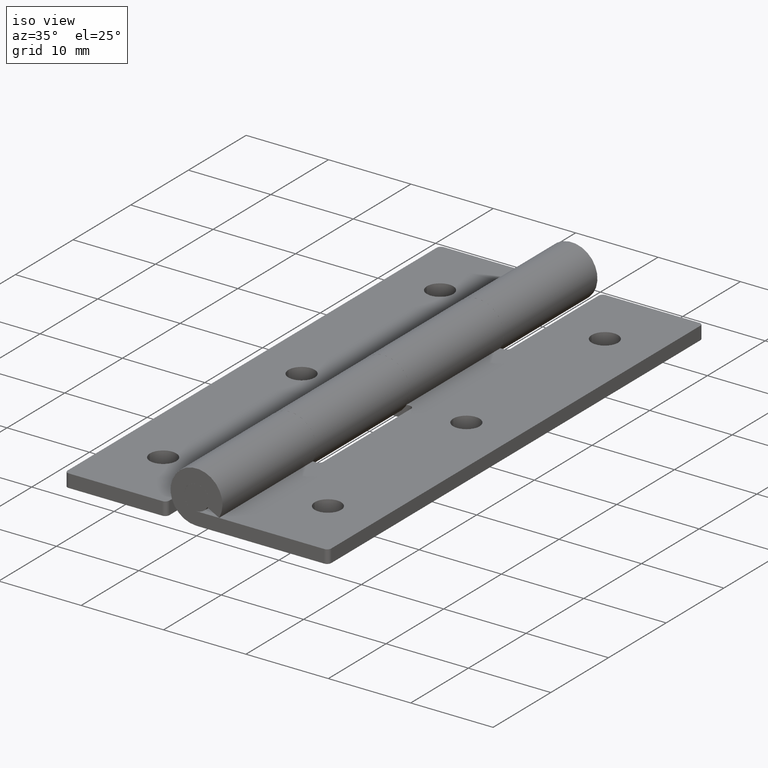
[diagram: clean part render]
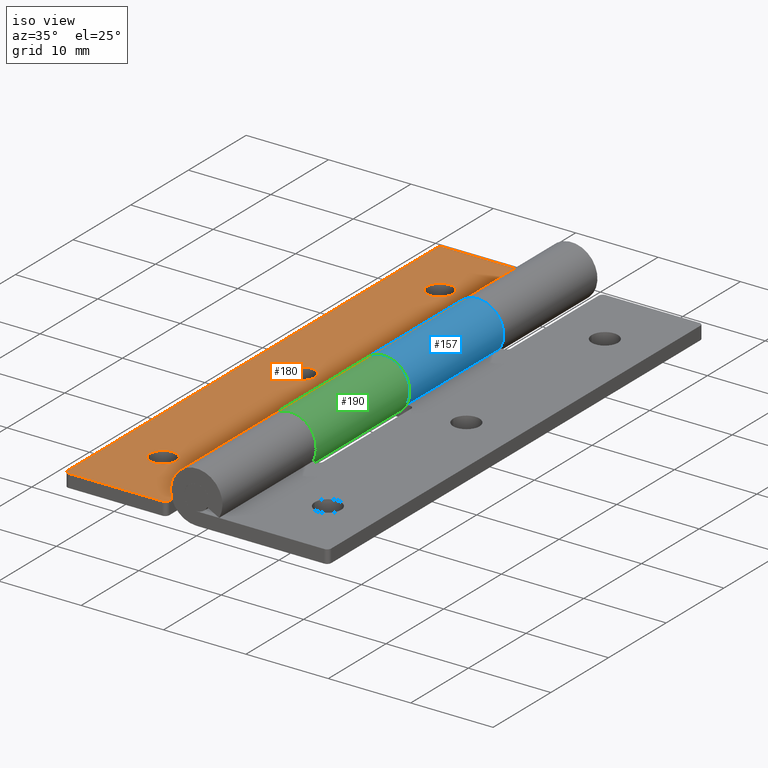
[diagram: same view with three faces highlighted in distinct colors, each labeled with its STEP entity id]
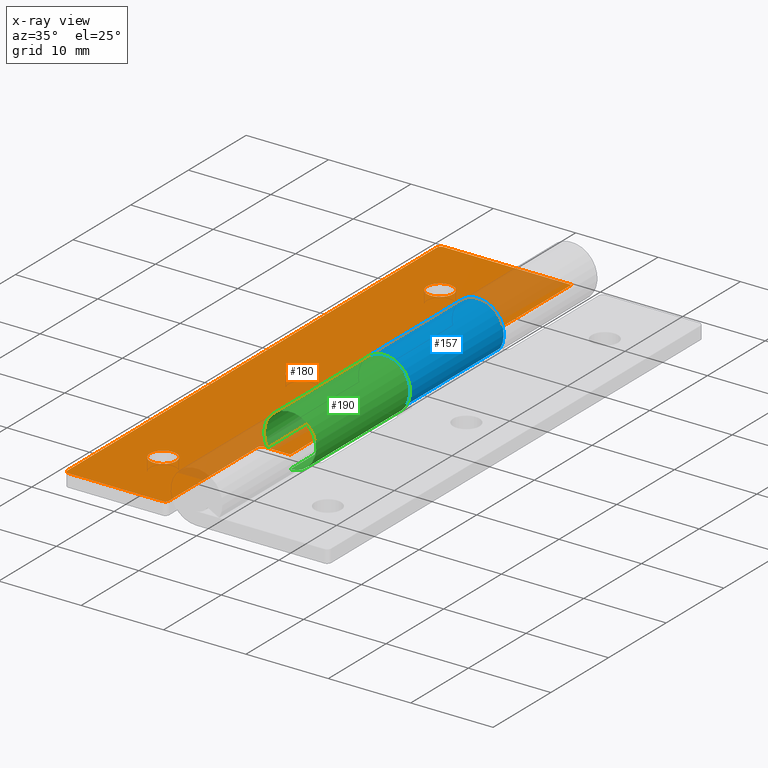
[diagram: x-ray of the same camera — body ghosted, the three highlighted faces saturated]
A machine part, iso view with three faces highlighted in distinct colors.
The next image is the same camera in x-ray (body ghosted, the three faces saturated) — at least one of them is partly hidden behind the body in this view.
Their STEP definitions:

[orange] entity #180 — the highlighted planar face has unit normal (0, 0, -1).
#180=ADVANCED_FACE('',(#526,#527,#528,#529),#525,.F.);
#525=PLANE('',#985);
#526=FACE_OUTER_BOUND('',#986,.T.);
#527=FACE_BOUND('',#987,.T.);
#528=FACE_BOUND('',#988,.T.);
#529=FACE_BOUND('',#989,.T.);
#982=CARTESIAN_POINT('',(1.59999999999E+00,-6.50000000000E+00,-1.50000000000E+00));
#983=DIRECTION('',(1.56175257191E-12,0.00000000000E+00,-1.00000000000E+00));
#984=DIRECTION('',(-1.00000000000E+00,0.00000000000E+00,-1.56175257191E-12));
#985=AXIS2_PLACEMENT_3D('',#982,#983,#984);
#986=EDGE_LOOP('',(#1303,#1304,#1305,#1306,#1307,#1308,#1309,#1310,#1311,#1312,#1313,#1314,#1315,#1316,#1317,#1318));
#987=EDGE_LOOP('',(#1319,#1320));
#988=EDGE_LOOP('',(#1321,#1322));
#989=EDGE_LOOP('',(#1323,#1324));
#1303=ORIENTED_EDGE('',*,*,#1548,.F.);
#1304=ORIENTED_EDGE('',*,*,#1549,.T.);
#1305=ORIENTED_EDGE('',*,*,#1550,.F.);
#1306=ORIENTED_EDGE('',*,*,#1551,.T.);
#1307=ORIENTED_EDGE('',*,*,#1544,.F.);
#1308=ORIENTED_EDGE('',*,*,#1552,.F.);
#1309=ORIENTED_EDGE('',*,*,#1543,.T.);
#1310=ORIENTED_EDGE('',*,*,#1535,.F.);
#1311=ORIENTED_EDGE('',*,*,#1553,.F.);
#1312=ORIENTED_EDGE('',*,*,#1554,.F.);
#1313=ORIENTED_EDGE('',*,*,#1555,.T.);
#1314=ORIENTED_EDGE('',*,*,#1556,.F.);
#1315=ORIENTED_EDGE('',*,*,#1557,.T.);
#1316=ORIENTED_EDGE('',*,*,#1558,.F.);
#1317=ORIENTED_EDGE('',*,*,#1559,.F.);
#1318=ORIENTED_EDGE('',*,*,#1560,.F.);
#1319=ORIENTED_EDGE('',*,*,#1561,.T.);
#1320=ORIENTED_EDGE('',*,*,#1562,.T.);
#1321=ORIENTED_EDGE('',*,*,#1563,.T.);
#1322=ORIENTED_EDGE('',*,*,#1564,.T.);
#1323=ORIENTED_EDGE('',*,*,#1565,.T.);
#1324=ORIENTED_EDGE('',*,*,#1566,.T.);
#1535=EDGE_CURVE('',#2139,#2140,#2141,.T.);
#1543=EDGE_CURVE('',#2182,#2140,#2195,.T.);
#1544=EDGE_CURVE('',#2201,#2202,#2203,.T.);
#1548=EDGE_CURVE('',#2229,#2230,#2231,.T.);
#1549=EDGE_CURVE('',#2229,#2237,#2238,.T.);
#1550=EDGE_CURVE('',#2244,#2237,#2245,.T.);
#1551=EDGE_CURVE('',#2244,#2202,#2251,.T.);
#1552=EDGE_CURVE('',#2182,#2201,#2257,.T.);
#1553=EDGE_CURVE('',#2263,#2139,#2264,.T.);
#1554=EDGE_CURVE('',#2270,#2263,#2271,.T.);
#1555=EDGE_CURVE('',#2270,#2277,#2278,.T.);
#1556=EDGE_CURVE('',#2284,#2277,#2285,.T.);
#1557=EDGE_CURVE('',#2284,#2291,#2292,.T.);
#1558=EDGE_CURVE('',#2298,#2291,#2299,.T.);
#1559=EDGE_CURVE('',#2305,#2298,#2306,.T.);
#1560=EDGE_CURVE('',#2230,#2305,#2312,.T.);
#1561=EDGE_CURVE('',#2318,#2319,#2320,.T.);
#1562=EDGE_CURVE('',#2319,#2318,#2326,.T.);
#1563=EDGE_CURVE('',#2332,#2333,#2334,.T.);
#1564=EDGE_CURVE('',#2333,#2332,#2340,.T.);
#1565=EDGE_CURVE('',#2346,#2347,#2348,.T.);
#1566=EDGE_CURVE('',#2347,#2346,#2354,.T.);
#2139=VERTEX_POINT('',#3011);
#2140=VERTEX_POINT('',#3012);
#2141=LINE('',#3013,#3014);
#2182=VERTEX_POINT('',#3038);
#2195=CIRCLE('',#3049,5.00000000000E-01);
#2201=VERTEX_POINT('',#3050);
#2202=VERTEX_POINT('',#3051);
#2203=CIRCLE('',#3055,4.99999999999E-01);
#2229=VERTEX_POINT('',#3068);
#2230=VERTEX_POINT('',#3069);
#2231=CIRCLE('',#3073,5.00000000000E-01);
#2237=VERTEX_POINT('',#3074);
#2238=LINE('',#3075,#3076);
#2244=VERTEX_POINT('',#3078);
#2245=CIRCLE('',#3082,5.00000000000E-01);
#2251=LINE('',#3083,#3084);
#2257=LINE('',#3086,#3087);
#2263=VERTEX_POINT('',#3089);
#2264=LINE('',#3090,#3091);
#2270=VERTEX_POINT('',#3093);
#2271=LINE('',#3094,#3095);
#2277=VERTEX_POINT('',#3097);
#2278=CIRCLE('',#3101,5.00000000000E-01);
#2284=VERTEX_POINT('',#3102);
#2285=LINE('',#3103,#3104);
#2291=VERTEX_POINT('',#3106);
#2292=CIRCLE('',#3110,5.00000000000E-01);
#2298=VERTEX_POINT('',#3111);
#2299=LINE('',#3112,#3113);
#2305=VERTEX_POINT('',#3115);
#2306=LINE('',#3116,#3117);
#2312=LINE('',#3119,#3120);
#2318=VERTEX_POINT('',#3122);
#2319=VERTEX_POINT('',#3123);
#2320=CIRCLE('',#3127,1.60000000000E+00);
#2326=CIRCLE('',#3131,1.60000000000E+00);
#2332=VERTEX_POINT('',#3132);
#2333=VERTEX_POINT('',#3133);
#2334=CIRCLE('',#3137,1.60000000000E+00);
#2340=CIRCLE('',#3141,1.60000000000E+00);
#2346=VERTEX_POINT('',#3142);
#2347=VERTEX_POINT('',#3143);
#2348=CIRCLE('',#3147,1.60000000000E+00);
#2354=CIRCLE('',#3151,1.60000000000E+00);
#3011=CARTESIAN_POINT('',(2.34451548248E-12,1.62500000000E+01,-1.50000000000E+00));
#3012=CARTESIAN_POINT('',(-3.14999999988E+00,1.62500000000E+01,-1.50000000000E+00));
#3013=CARTESIAN_POINT('',(2.34479102801E-12,1.62500000000E+01,-1.50000000000E+00));
#3014=VECTOR('',#3015,3.14999999988E+00);
#3015=DIRECTION('',(-1.00000000000E+00,-7.75957781304E-13,-1.56171372137E-12));
#3038=CARTESIAN_POINT('',(-3.64999999988E+00,1.57500000000E+01,-1.50000000001E+00));
#3046=CARTESIAN_POINT('',(-3.14999999988E+00,1.57500000000E+01,-1.50000000001E+00));
#3047=DIRECTION('',(1.56175257191E-12,0.00000000000E+00,-1.00000000000E+00));
#3048=DIRECTION('',(1.00000000000E+00,-0.00000000000E+00,1.56175257191E-12));
#3049=AXIS2_PLACEMENT_3D('',#3046,#3047,#3048);
#3050=CARTESIAN_POINT('',(-3.64999999990E+00,5.00000000007E-01,-1.50000000001E+00));
#3051=CARTESIAN_POINT('',(-4.14999999990E+00,6.70752342558E-12,-1.50000000001E+00));
#3052=CARTESIAN_POINT('',(-4.14999999990E+00,5.00000000007E-01,-1.50000000001E+00));
#3053=DIRECTION('',(1.56175257191E-12,0.00000000000E+00,-1.00000000000E+00));
#3054=DIRECTION('',(1.00000000000E+00,-0.00000000000E+00,1.56175257191E-12));
#3055=AXIS2_PLACEMENT_3D('',#3052,#3053,#3054);
#3068=CARTESIAN_POINT('',(-1.59999999998E+01,6.45000000000E+01,-1.50000000003E+00));
#3069=CARTESIAN_POINT('',(-1.54999999998E+01,6.50000000000E+01,-1.50000000002E+00));
#3070=CARTESIAN_POINT('',(-1.54999999998E+01,6.45000000000E+01,-1.50000000002E+00));
#3071=DIRECTION('',(1.56175257191E-12,0.00000000000E+00,-1.00000000000E+00));
#3072=DIRECTION('',(1.00000000000E+00,-0.00000000000E+00,1.56175257191E-12));
#3073=AXIS2_PLACEMENT_3D('',#3070,#3071,#3072);
#3074=CARTESIAN_POINT('',(-1.59999999999E+01,5.00000000025E-01,-1.50000000003E+00));
#3075=CARTESIAN_POINT('',(-1.59999999998E+01,6.45000000000E+01,-1.50000000003E+00));
#3076=VECTOR('',#3077,6.40000000000E+01);
#3077=DIRECTION('',(0.00000000000E+00,-1.00000000000E+00,0.00000000000E+00));
#3078=CARTESIAN_POINT('',(-1.54999999999E+01,2.44995135290E-11,-1.50000000001E+00));
#3079=CARTESIAN_POINT('',(-1.54999999999E+01,5.00000000024E-01,-1.50000000002E+00));
#3080=DIRECTION('',(1.56175257191E-12,0.00000000000E+00,-1.00000000000E+00));
#3081=DIRECTION('',(1.00000000000E+00,-0.00000000000E+00,1.56175257191E-12));
#3082=AXIS2_PLACEMENT_3D('',#3079,#3080,#3081);
#3083=CARTESIAN_POINT('',(-1.54999999999E+01,6.70752342558E-12,-1.50000000002E+00));
#3084=VECTOR('',#3085,1.13500000000E+01);
#3085=DIRECTION('',(1.00000000000E+00,0.00000000000E+00,1.56174632697E-12));
#3086=CARTESIAN_POINT('',(-3.64999999988E+00,1.57500000000E+01,-1.50000000001E+00));
#3087=VECTOR('',#3088,1.52500000000E+01);
#3088=DIRECTION('',(-1.56738738564E-12,-1.00000000000E+00,0.00000000000E+00));
#3089=CARTESIAN_POINT('',(2.34451548248E-12,3.25000000000E+01,-1.50000000000E+00));
#3090=CARTESIAN_POINT('',(2.34451548248E-12,3.25000000000E+01,-1.50000000000E+00));
#3091=VECTOR('',#3092,1.62500000000E+01);
#3092=DIRECTION('',(0.00000000000E+00,-1.00000000000E+00,0.00000000000E+00));
#3093=CARTESIAN_POINT('',(-3.14999999984E+00,3.25000000000E+01,-1.50000000000E+00));
#3094=CARTESIAN_POINT('',(-3.14999999984E+00,3.25000000000E+01,-1.50000000001E+00));
#3095=VECTOR('',#3096,3.14999999984E+00);
#3096=DIRECTION('',(1.00000000000E+00,-1.30153383668E-12,1.56171372139E-12));
#3097=CARTESIAN_POINT('',(-3.64999999984E+00,3.30000000000E+01,-1.50000000001E+00));
#3098=CARTESIAN_POINT('',(-3.14999999984E+00,3.30000000000E+01,-1.50000000001E+00));
#3099=DIRECTION('',(1.56175257191E-12,0.00000000000E+00,-1.00000000000E+00));
#3100=DIRECTION('',(1.00000000000E+00,-0.00000000000E+00,1.56175257191E-12));
#3101=AXIS2_PLACEMENT_3D('',#3098,#3099,#3100);
#3102=CARTESIAN_POINT('',(-3.64999999981E+00,4.82500000000E+01,-1.50000000001E+00));
#3103=CARTESIAN_POINT('',(-3.64999999981E+00,4.82500000000E+01,-1.50000000001E+00));
#3104=VECTOR('',#3105,1.52500000000E+01);
#3105=DIRECTION('',(-1.56738738564E-12,-1.00000000000E+00,0.00000000000E+00));
#3106=CARTESIAN_POINT('',(-3.14999999981E+00,4.87500000000E+01,-1.50000000000E+00));
#3107=CARTESIAN_POINT('',(-3.14999999981E+00,4.82500000000E+01,-1.50000000001E+00));
#3108=DIRECTION('',(1.56175257191E-12,0.00000000000E+00,-1.00000000000E+00));
#3109=DIRECTION('',(1.00000000000E+00,-0.00000000000E+00,1.56175257191E-12));
#3110=AXIS2_PLACEMENT_3D('',#3107,#3108,#3109);
#3111=CARTESIAN_POINT('',(2.34451548249E-12,4.87500000000E+01,-1.50000000000E+00));
#3112=CARTESIAN_POINT('',(2.34656738485E-12,4.87500000000E+01,-1.50000000000E+00));
#3113=VECTOR('',#3114,3.14999999981E+00);
#3114=DIRECTION('',(-1.00000000000E+00,-2.86021647301E-12,-1.56171372140E-12));
#3115=CARTESIAN_POINT('',(2.34451548248E-12,6.50000000000E+01,-1.50000000000E+00));
#3116=CARTESIAN_POINT('',(2.34451548248E-12,6.50000000000E+01,-1.50000000000E+00));
#3117=VECTOR('',#3118,1.62500000000E+01);
#3118=DIRECTION('',(0.00000000000E+00,-1.00000000000E+00,0.00000000000E+00));
#3119=CARTESIAN_POINT('',(-1.54999999998E+01,6.50000000000E+01,-1.50000000002E+00));
#3120=VECTOR('',#3121,1.54999999998E+01);
#3121=DIRECTION('',(1.00000000000E+00,0.00000000000E+00,1.56174714740E-12));
#3122=CARTESIAN_POINT('',(-1.16000000000E+01,3.25000000000E+01,-1.50000000002E+00));
#3123=CARTESIAN_POINT('',(-8.40000000003E+00,3.25000000000E+01,-1.50000000002E+00));
#3124=CARTESIAN_POINT('',(-1.00000000000E+01,3.25000000000E+01,-1.50000000002E+00));
#3125=DIRECTION('',(1.56175257191E-12,0.00000000000E+00,-1.00000000000E+00));
#3126=DIRECTION('',(-1.00000000000E+00,-1.22460635382E-16,-1.56175257191E-12));
#3127=AXIS2_PLACEMENT_3D('',#3124,#3125,#3126);
#3128=CARTESIAN_POINT('',(-1.00000000000E+01,3.25000000000E+01,-1.50000000002E+00));
#3129=DIRECTION('',(1.56175257191E-12,0.00000000000E+00,-1.00000000000E+00));
#3130=DIRECTION('',(-1.00000000000E+00,-1.22460635382E-16,-1.56175257191E-12));
#3131=AXIS2_PLACEMENT_3D('',#3128,#3129,#3130);
#3132=CARTESIAN_POINT('',(-1.16000000000E+01,5.65000000000E+01,-1.50000000002E+00));
#3133=CARTESIAN_POINT('',(-8.40000000001E+00,5.65000000000E+01,-1.50000000002E+00));
#3134=CARTESIAN_POINT('',(-1.00000000000E+01,5.65000000000E+01,-1.50000000002E+00));
#3135=DIRECTION('',(1.56175257191E-12,0.00000000000E+00,-1.00000000000E+00));
#3136=DIRECTION('',(-1.00000000000E+00,-1.22460635382E-16,-1.56175257191E-12));
#3137=AXIS2_PLACEMENT_3D('',#3134,#3135,#3136);
#3138=CARTESIAN_POINT('',(-1.00000000000E+01,5.65000000000E+01,-1.50000000002E+00));
#3139=DIRECTION('',(1.56175257191E-12,0.00000000000E+00,-1.00000000000E+00));
#3140=DIRECTION('',(-1.00000000000E+00,-1.22460635382E-16,-1.56175257191E-12));
#3141=AXIS2_PLACEMENT_3D('',#3138,#3139,#3140);
#3142=CARTESIAN_POINT('',(-1.16000000000E+01,8.50000000002E+00,-1.50000000002E+00));
#3143=CARTESIAN_POINT('',(-8.40000000005E+00,8.50000000002E+00,-1.50000000002E+00));
#3144=CARTESIAN_POINT('',(-1.00000000000E+01,8.50000000002E+00,-1.50000000002E+00));
#3145=DIRECTION('',(1.56175257191E-12,0.00000000000E+00,-1.00000000000E+00));
#3146=DIRECTION('',(-1.00000000000E+00,-1.22460635382E-16,-1.56175257191E-12));
#3147=AXIS2_PLACEMENT_3D('',#3144,#3145,#3146);
#3148=CARTESIAN_POINT('',(-1.00000000000E+01,8.50000000002E+00,-1.50000000002E+00));
#3149=DIRECTION('',(1.56175257191E-12,0.00000000000E+00,-1.00000000000E+00));
#3150=DIRECTION('',(-1.00000000000E+00,-1.22460635382E-16,-1.56175257191E-12));
#3151=AXIS2_PLACEMENT_3D('',#3148,#3149,#3150);

[blue] entity #157 — the highlighted cylindrical surface (edge-blend (fillet) strip) has radius 3.15 mm, axis along (0, 1, 0).
#157=ADVANCED_FACE('',(#296),#295,.T.);
#295=CYLINDRICAL_SURFACE('',#870,3.14999799977E+00);
#296=FACE_OUTER_BOUND('',#871,.T.);
#867=CARTESIAN_POINT('',(0.00000000000E+00,1.00000000000E+03,4.99999997585E-02));
#868=DIRECTION('',(-0.00000000000E+00,1.00000000000E+00,0.00000000000E+00));
#869=DIRECTION('',(5.15038074910E-01,0.00000000000E+00,-8.57167300702E-01));
#870=AXIS2_PLACEMENT_3D('',#867,#868,#869);
#871=EDGE_LOOP('',(#1203,#1204,#1205,#1206));
#1203=ORIENTED_EDGE('',*,*,#1516,.F.);
#1204=ORIENTED_EDGE('',*,*,#1517,.T.);
#1205=ORIENTED_EDGE('',*,*,#1469,.T.);
#1206=ORIENTED_EDGE('',*,*,#1518,.T.);
#1469=EDGE_CURVE('',#1703,#1696,#1704,.T.);
#1516=EDGE_CURVE('',#2023,#2024,#2025,.T.);
#1517=EDGE_CURVE('',#2023,#1703,#2031,.T.);
#1518=EDGE_CURVE('',#1696,#2024,#2037,.T.);
#1696=VERTEX_POINT('',#2746);
#1703=VERTEX_POINT('',#2750);
#1704=LINE('',#2751,#2752);
#2023=VERTEX_POINT('',#2955);
#2024=VERTEX_POINT('',#2956);
#2025=LINE('',#2957,#2958);
#2031=CIRCLE('',#2963,3.14999799977E+00);
#2037=CIRCLE('',#2967,3.14999799977E+00);
#2746=CARTESIAN_POINT('',(0.00000000000E+00,3.25000000000E+01,-3.09999800001E+00));
#2750=CARTESIAN_POINT('',(0.00000000000E+00,4.87500000000E+01,-3.09999800001E+00));
#2751=CARTESIAN_POINT('',(2.46025422257E-12,4.87500000000E+01,-3.09999800001E+00));
#2752=VECTOR('',#2753,1.62500000000E+01);
#2753=DIRECTION('',(0.00000000000E+00,-1.00000000000E+00,0.00000000000E+00));
#2955=CARTESIAN_POINT('',(2.74494011222E+00,4.87500000000E+01,-1.49524793467E+00));
#2956=CARTESIAN_POINT('',(2.74494011222E+00,3.25000000000E+01,-1.49524793467E+00));
#2957=CARTESIAN_POINT('',(2.74494011222E+00,4.87500000000E+01,-1.49524793467E+00));
#2958=VECTOR('',#2959,1.62500000000E+01);
#2959=DIRECTION('',(0.00000000000E+00,-1.00000000000E+00,0.00000000000E+00));
#2960=CARTESIAN_POINT('',(0.00000000000E+00,4.87500000000E+01,4.99999997585E-02));
#2961=DIRECTION('',(2.86036626500E-12,-1.00000000000E+00,0.00000000000E+00));
#2962=DIRECTION('',(-1.83690953073E-16,-5.25423405357E-28,-1.00000000000E+00));
#2963=AXIS2_PLACEMENT_3D('',#2960,#2961,#2962);
#2964=CARTESIAN_POINT('',(0.00000000000E+00,3.25000000000E+01,4.99999997585E-02));
#2965=DIRECTION('',(1.29856443066E-12,1.00000000000E+00,-1.00974195868E-28));
#2966=DIRECTION('',(8.71410112776E-01,-1.13158217697E-12,-4.90555211319E-01));
#2967=AXIS2_PLACEMENT_3D('',#2964,#2965,#2966);

[green] entity #190 — the highlighted cylindrical surface (edge-blend (fillet) strip) has radius 3.15 mm, axis along (0, 1, 0).
#190=ADVANCED_FACE('',(#632),#631,.T.);
#631=CYLINDRICAL_SURFACE('',#1041,3.14999799977E+00);
#632=FACE_OUTER_BOUND('',#1042,.T.);
#1038=CARTESIAN_POINT('',(0.00000000000E+00,1.00000000000E+03,4.99999997585E-02));
#1039=DIRECTION('',(-0.00000000000E+00,1.00000000000E+00,0.00000000000E+00));
#1040=DIRECTION('',(-4.92423560103E-01,0.00000000000E+00,-8.70355695940E-01));
#1041=AXIS2_PLACEMENT_3D('',#1038,#1039,#1040);
#1042=EDGE_LOOP('',(#1381,#1382,#1383,#1384));
#1381=ORIENTED_EDGE('',*,*,#1598,.T.);
#1382=ORIENTED_EDGE('',*,*,#1538,.T.);
#1383=ORIENTED_EDGE('',*,*,#1586,.F.);
#1384=ORIENTED_EDGE('',*,*,#1602,.T.);
#1538=EDGE_CURVE('',#2161,#2154,#2162,.T.);
#1586=EDGE_CURVE('',#2481,#2154,#2488,.T.);
#1598=EDGE_CURVE('',#2567,#2161,#2568,.T.);
#1602=EDGE_CURVE('',#2481,#2567,#2593,.T.);
#2154=VERTEX_POINT('',#3020);
#2161=VERTEX_POINT('',#3024);
#2162=CIRCLE('',#3028,3.14999799977E+00);
#2481=VERTEX_POINT('',#3225);
#2488=LINE('',#3229,#3230);
#2567=VERTEX_POINT('',#3280);
#2568=LINE('',#3281,#3282);
#2593=CIRCLE('',#3298,3.14999799977E+00);
#3020=CARTESIAN_POINT('',(2.45940420807E-12,1.62500000000E+01,-3.09999800001E+00));
#3024=CARTESIAN_POINT('',(-2.74494011222E+00,1.62500000000E+01,-1.49524793467E+00));
#3025=CARTESIAN_POINT('',(0.00000000000E+00,1.62500000000E+01,4.99999997585E-02));
#3026=DIRECTION('',(-7.75942470403E-13,1.00000000000E+00,1.83670992316E-40));
#3027=DIRECTION('',(7.80892521869E-13,6.05927672539E-25,-1.00000000000E+00));
#3028=AXIS2_PLACEMENT_3D('',#3025,#3026,#3027);
#3225=CARTESIAN_POINT('',(2.45942413754E-12,3.25000000000E+01,-3.09999800001E+00));
#3229=CARTESIAN_POINT('',(2.45942413754E-12,3.25000000000E+01,-3.09999800001E+00));
#3230=VECTOR('',#3231,1.62500000000E+01);
#3231=DIRECTION('',(0.00000000000E+00,-1.00000000000E+00,0.00000000000E+00));
#3280=CARTESIAN_POINT('',(-2.74494011222E+00,3.25000000000E+01,-1.49524793467E+00));
#3281=CARTESIAN_POINT('',(-2.74494011222E+00,3.25000000000E+01,-1.49524793467E+00));
#3282=VECTOR('',#3283,1.62500000000E+01);
#3283=DIRECTION('',(0.00000000000E+00,-1.00000000000E+00,0.00000000000E+00));
#3295=CARTESIAN_POINT('',(0.00000000000E+00,3.25000000000E+01,4.99999997585E-02));
#3296=DIRECTION('',(-1.29965746658E-12,-1.00000000000E+00,0.00000000000E+00));
#3297=DIRECTION('',(-8.71410112776E-01,1.13253465952E-12,-4.90555211319E-01));
#3298=AXIS2_PLACEMENT_3D('',#3295,#3296,#3297);